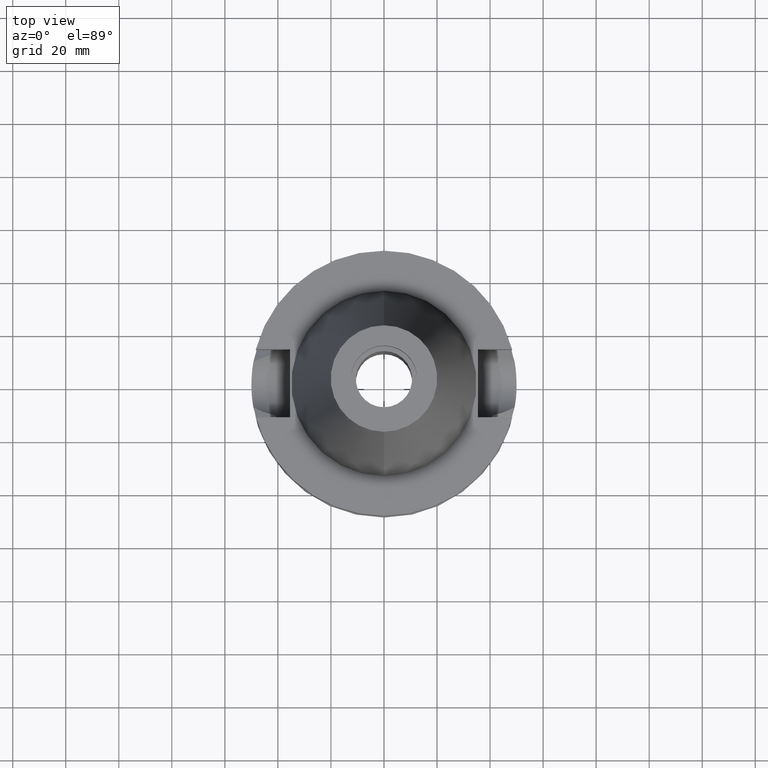
[diagram: clean part render]
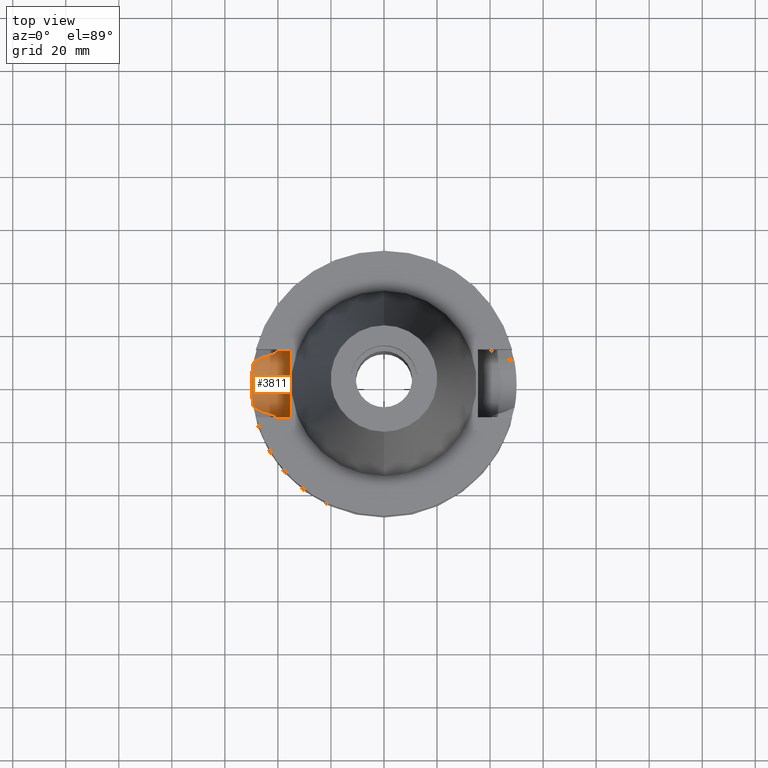
[diagram: same view with one face highlighted and labeled with its STEP entity id]
A machine part, top view. The second image highlights one B-rep face of the part: STEP entity #3811.
In plain terms, the highlighted cylindrical surface (edge-blend (fillet) strip) has radius 12.85 mm, axis along (-1, 0, 0).
Its self-contained STEP definition (entity closure, byte-faithful):
#1479=CARTESIAN_POINT('',(-4.926250064874E1,-8.556052234130E0,
-3.073730776427E1));
#1480=CARTESIAN_POINT('',(-4.853470121685E1,-8.973711545862E0,
-3.036457383571E1));
#1481=CARTESIAN_POINT('',(-4.694003993171E1,-9.780989135792E0,
-2.954712616150E1));
#1482=CARTESIAN_POINT('',(-4.408891565119E1,-1.087300415134E1,
-2.808111934920E1));
#1483=CARTESIAN_POINT('',(-4.196953824789E1,-1.146551407848E1,
-2.698677544067E1));
#1484=CARTESIAN_POINT('',(-4.085052569294E1,-1.172538061688E1,
-2.640718074535E1));
#1531=DIRECTION('',(1.E0,3.440913946377E-14,0.E0));
#1532=VECTOR('',#1531,5.110831884819E0);
#1533=CARTESIAN_POINT('',(-4.051083188482E1,1.285E1,-2.115E1));
#1534=LINE('',#1533,#1532);
#1538=DIRECTION('',(-1.E0,3.440913946377E-14,0.E0));
#1539=VECTOR('',#1538,5.110831884819E0);
#1540=CARTESIAN_POINT('',(-3.54E1,-1.285E1,-2.115E1));
#1541=LINE('',#1540,#1539);
#1545=CARTESIAN_POINT('',(-4.926250064874E1,8.556052234130E0,
-3.073730776427E1));
#1546=CARTESIAN_POINT('',(-4.938257041523E1,7.864736100488E0,
-3.135426271087E1));
#1547=CARTESIAN_POINT('',(-4.960816148579E1,6.393814891544E0,
-3.240295242283E1));
#1548=CARTESIAN_POINT('',(-4.986663224373E1,3.938303146007E0,
-3.347879476662E1));
#1549=CARTESIAN_POINT('',(-5.000665670733E1,1.312464764293E0,
-3.402614511620E1));
#1550=CARTESIAN_POINT('',(-5.000491530242E1,-1.372472453306E0,
-3.401947062196E1));
#1551=CARTESIAN_POINT('',(-4.986261805564E1,-3.985055039852E0,
-3.346269100385E1));
#1552=CARTESIAN_POINT('',(-4.960440898289E1,-6.419945518538E0,
-3.238623545019E1));
#1553=CARTESIAN_POINT('',(-4.938106348839E1,-7.873412413147E0,
-3.134651966286E1));
#1554=CARTESIAN_POINT('',(-4.926250064874E1,-8.556052234130E0,
-3.073730776427E1));
#1566=CARTESIAN_POINT('',(-4.085052569294E1,1.172538061688E1,
-2.640718074535E1));
#1567=CARTESIAN_POINT('',(-4.196794801865E1,1.146588337493E1,
-2.698595177840E1));
#1568=CARTESIAN_POINT('',(-4.408523721995E1,1.087411996884E1,
-2.807922318590E1));
#1569=CARTESIAN_POINT('',(-4.693544941074E1,9.783042055637E0,
-2.954476924045E1));
#1570=CARTESIAN_POINT('',(-4.853281495091E1,8.974794009660E0,
-3.036360780677E1));
#1571=CARTESIAN_POINT('',(-4.926250064874E1,8.556052234130E0,
-3.073730776427E1));
#1618=CARTESIAN_POINT('',(-4.051083188482E1,1.285E1,-2.115E1));
#1619=CARTESIAN_POINT('',(-4.051083188482E1,1.285E1,-2.175073247763E1));
#1620=CARTESIAN_POINT('',(-4.053738276532E1,1.276675941257E1,
-2.294139011627E1));
#1621=CARTESIAN_POINT('',(-4.065473331505E1,1.239069690086E1,
-2.471148607709E1));
#1622=CARTESIAN_POINT('',(-4.077854934315E1,1.197614192029E1,
-2.584789395860E1));
#1623=CARTESIAN_POINT('',(-4.085052569294E1,1.172538061688E1,
-2.640718074535E1));
#1782=CARTESIAN_POINT('',(-3.54E1,1.497743035357E-14,-2.115E1));
#1783=DIRECTION('',(1.E0,0.E0,0.E0));
#1784=DIRECTION('',(0.E0,-1.E0,0.E0));
#1785=AXIS2_PLACEMENT_3D('',#1782,#1783,#1784);
#1790=CARTESIAN_POINT('',(-3.54E1,1.497743035357E-14,-2.115E1));
#1791=DIRECTION('',(1.E0,0.E0,0.E0));
#1792=DIRECTION('',(0.E0,0.E0,-1.E0));
#1793=AXIS2_PLACEMENT_3D('',#1790,#1791,#1792);
#1822=CARTESIAN_POINT('',(-4.085052569294E1,-1.172538061688E1,
-2.640718074535E1));
#1823=CARTESIAN_POINT('',(-4.077854355979E1,-1.197616206914E1,
-2.584784901949E1));
#1824=CARTESIAN_POINT('',(-4.065472282753E1,-1.239073116541E1,
-2.471137551056E1));
#1825=CARTESIAN_POINT('',(-4.053737830953E1,-1.276677337064E1,
-2.294127393164E1));
#1826=CARTESIAN_POINT('',(-4.051083188482E1,-1.285E1,-2.175068253365E1));
#1827=CARTESIAN_POINT('',(-4.051083188482E1,-1.285E1,-2.115E1));
#2698=VERTEX_POINT('',#1479);
#2699=VERTEX_POINT('',#1484);
#2702=VERTEX_POINT('',#1566);
#2703=VERTEX_POINT('',#1571);
#2706=VERTEX_POINT('',#1618);
#2707=CARTESIAN_POINT('',(-3.54E1,1.285E1,-2.115E1));
#2708=VERTEX_POINT('',#2707);
#2709=CARTESIAN_POINT('',(-3.54E1,1.576426592202E-14,-3.4E1));
#2710=VERTEX_POINT('',#2709);
#2711=CARTESIAN_POINT('',(-3.54E1,-1.285E1,-2.115E1));
#2712=VERTEX_POINT('',#2711);
#2713=CARTESIAN_POINT('',(-4.051083188482E1,-1.285E1,-2.115E1));
#2714=VERTEX_POINT('',#2713);
#3787=CARTESIAN_POINT('',(-3.54E1,1.497743035357E-14,-2.115E1));
#3788=DIRECTION('',(-1.E0,0.E0,0.E0));
#3789=DIRECTION('',(0.E0,0.E0,-1.E0));
#3790=AXIS2_PLACEMENT_3D('',#3787,#3788,#3789);
#3791=CYLINDRICAL_SURFACE('',#3790,1.285E1);
#3792=ORIENTED_EDGE('',*,*,#3774,.F.);
#3794=ORIENTED_EDGE('',*,*,#3793,.F.);
#3796=ORIENTED_EDGE('',*,*,#3795,.F.);
#3798=ORIENTED_EDGE('',*,*,#3797,.F.);
#3800=ORIENTED_EDGE('',*,*,#3799,.T.);
#3802=ORIENTED_EDGE('',*,*,#3801,.F.);
#3804=ORIENTED_EDGE('',*,*,#3803,.F.);
#3806=ORIENTED_EDGE('',*,*,#3805,.T.);
#3808=ORIENTED_EDGE('',*,*,#3807,.F.);
#3809=EDGE_LOOP('',(#3792,#3794,#3796,#3798,#3800,#3802,#3804,#3806,#3808));
#3810=FACE_OUTER_BOUND('',#3809,.F.);
#1485=B_SPLINE_CURVE_WITH_KNOTS('',3,(#1479,#1480,#1481,#1482,#1483,#1484),
.UNSPECIFIED.,.F.,.F.,(4,1,1,4),(0.E0,3.333333333333E-1,6.666666666667E-1,1.E0),
.UNSPECIFIED.);
#1555=B_SPLINE_CURVE_WITH_KNOTS('',3,(#1545,#1546,#1547,#1548,#1549,#1550,#1551,
#1552,#1553,#1554),.UNSPECIFIED.,.F.,.F.,(4,1,1,1,1,1,1,4),(0.E0,
1.428571428571E-1,2.857142857143E-1,4.285714285714E-1,5.714285714286E-1,
7.142857142857E-1,8.571428571429E-1,1.E0),.UNSPECIFIED.);
#1572=B_SPLINE_CURVE_WITH_KNOTS('',3,(#1566,#1567,#1568,#1569,#1570,#1571),
.UNSPECIFIED.,.F.,.F.,(4,1,1,4),(0.E0,3.333333333333E-1,6.666666666667E-1,1.E0),
.UNSPECIFIED.);
#1624=B_SPLINE_CURVE_WITH_KNOTS('',3,(#1618,#1619,#1620,#1621,#1622,#1623),
.UNSPECIFIED.,.F.,.F.,(4,1,1,4),(0.E0,3.333333333333E-1,6.666666666667E-1,1.E0),
.UNSPECIFIED.);
#1786=CIRCLE('',#1785,1.285E1);
#1794=CIRCLE('',#1793,1.285E1);
#1828=B_SPLINE_CURVE_WITH_KNOTS('',3,(#1822,#1823,#1824,#1825,#1826,#1827),
.UNSPECIFIED.,.F.,.F.,(4,1,1,4),(0.E0,3.333333333333E-1,6.666666666667E-1,1.E0),
.UNSPECIFIED.);
#3774=EDGE_CURVE('',#2698,#2699,#1485,.T.);
#3793=EDGE_CURVE('',#2703,#2698,#1555,.T.);
#3795=EDGE_CURVE('',#2702,#2703,#1572,.T.);
#3797=EDGE_CURVE('',#2706,#2702,#1624,.T.);
#3799=EDGE_CURVE('',#2706,#2708,#1534,.T.);
#3801=EDGE_CURVE('',#2710,#2708,#1794,.T.);
#3803=EDGE_CURVE('',#2712,#2710,#1786,.T.);
#3805=EDGE_CURVE('',#2712,#2714,#1541,.T.);
#3807=EDGE_CURVE('',#2699,#2714,#1828,.T.);
#3811=ADVANCED_FACE('',(#3810),#3791,.F.);